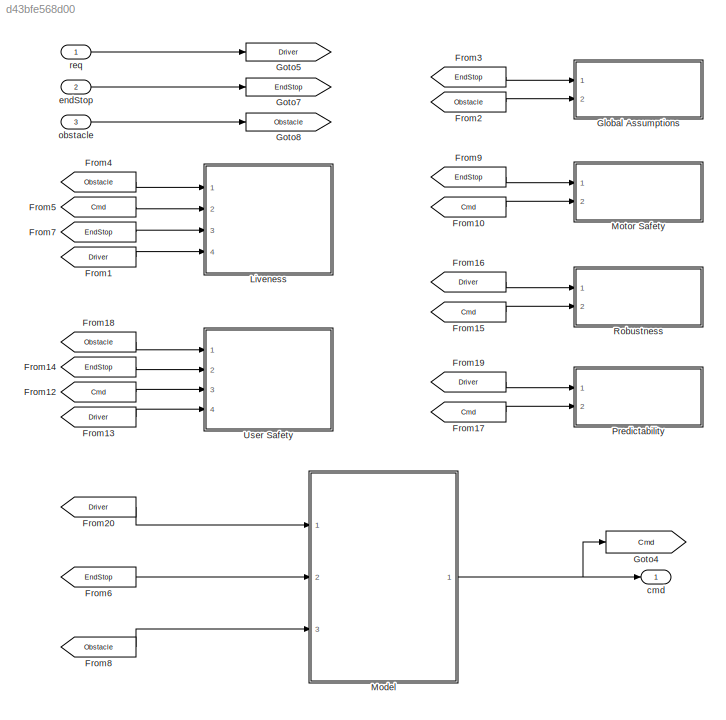
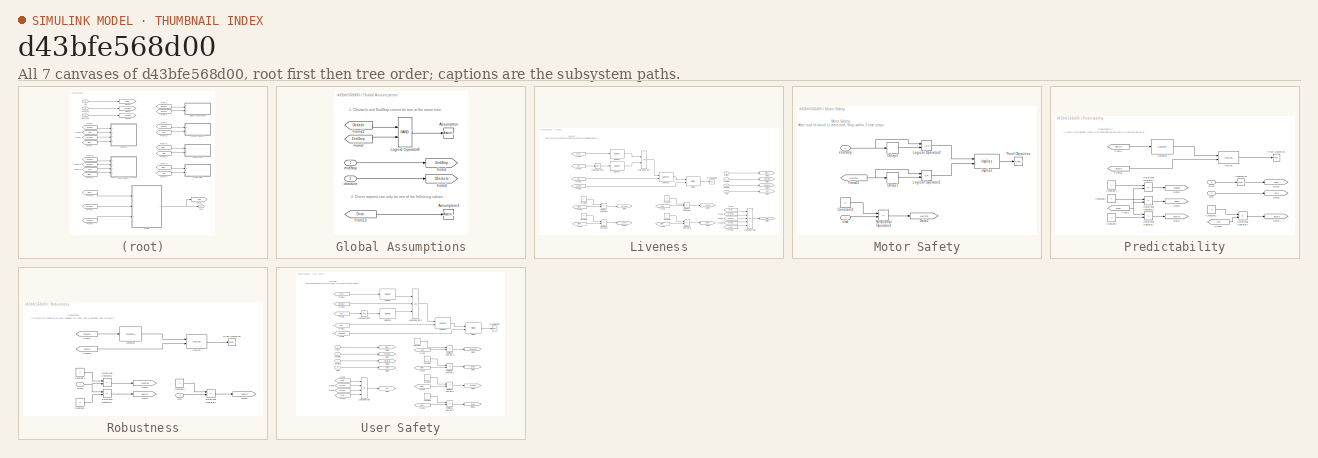
[diagram: thumbnail index - all 7 canvases of the model, root first then tree order]
MODEL slx_d43bfe568d00
KIND model
BLOCK [From] From1
  GotoTag = Driver
BLOCK [From] From10
  GotoTag = Cmd
BLOCK [From] From12
  GotoTag = Cmd
BLOCK [From] From13
  GotoTag = Driver
BLOCK [From] From14
  GotoTag = EndStop
BLOCK [From] From15
  GotoTag = Cmd
BLOCK [From] From16
  GotoTag = Driver
BLOCK [From] From17
  GotoTag = Cmd
BLOCK [From] From18
  GotoTag = Obstacle
BLOCK [From] From19
  GotoTag = Driver
BLOCK [From] From2
  GotoTag = Obstacle
BLOCK [From] From20
  GotoTag = Driver
BLOCK [From] From3
  GotoTag = EndStop
BLOCK [From] From4
  GotoTag = Obstacle
BLOCK [From] From5
  GotoTag = Cmd
BLOCK [From] From6
  GotoTag = EndStop
BLOCK [From] From7
  GotoTag = EndStop
BLOCK [From] From8
  GotoTag = Obstacle
BLOCK [From] From9
  GotoTag = EndStop
BLOCK [SubSystem] Global Assumptions
  CopyFcn = sldvsubsys('copy');
  DisableCoverage = on
  FunctionWithSeparateData = off
  LoadFcn = sldvsubsys('check')
  MaskHideContents = off
  MinAlgLoopOccurrences = off
  Opaque = off
  OpenFcn = open_system(gcb,'force');
  Ports = [2]
  PreSaveFcn = set_param(gcb,'SimViewingDevice','on');\nsldvsubsys('check');
  PropExecContextOutsideSubsystem = off
  RTWSystemCode = Auto
  RequestExecContextInheritance = off
  SimViewingDevice = on
  Tag = VerificationSubsystem
  TreatAsAtomicUnit = on
BLOCK [Reference] Global Assumptions/Assumption  REF=sldvlib/Objectives and Constraints/Assumption
  AttributesFormatString = %<intervals>
  Ports = [1]
  SourceBlock = sldvlib/Objectives and Constraints/Assumption
  SourceType = Design Verifier Assumption
  customAVTBlockType = Assumption
  dispValues = on
  enabled = on
  initial = off
  intervals = true
  outEnabled = off
BLOCK [Reference] Global Assumptions/Assumption1  REF=sldvlib/Objectives and Constraints/Assumption
  AttributesFormatString = %<intervals>
  Ports = [1]
  SourceBlock = sldvlib/Objectives and Constraints/Assumption
  SourceType = Design Verifier Assumption
  customAVTBlockType = Assumption
  dispValues = on
  enabled = on
  initial = off
  intervals = {0,1,2,3,4}
  outEnabled = off
BLOCK [From] Global Assumptions/From13
  GotoTag = Driver
BLOCK [From] Global Assumptions/From2
  GotoTag = EndStop
  TagVisibility = global
BLOCK [From] Global Assumptions/From22
  GotoTag = Obstacle
  TagVisibility = global
BLOCK [Goto] Global Assumptions/Goto1
  GotoTag = EndStop
  TagVisibility = global
BLOCK [Goto] Global Assumptions/Goto4
  GotoTag = Obstacle
  TagVisibility = global
BLOCK [Logic] Global Assumptions/Logical Operator8
  AllPortsSameDT = off
  Operator = NAND
  OutDataTypeStr = boolean
  Ports = [2, 1]
BLOCK [Inport] Global Assumptions/endStop
  IconDisplay = Port number
BLOCK [Inport] Global Assumptions/obstacle
  IconDisplay = Port number
  Port = 2
BLOCK [Goto] Goto4
  GotoTag = Cmd
BLOCK [Goto] Goto5
  GotoTag = Driver
BLOCK [Goto] Goto7
  GotoTag = EndStop
BLOCK [Goto] Goto8
  GotoTag = Obstacle
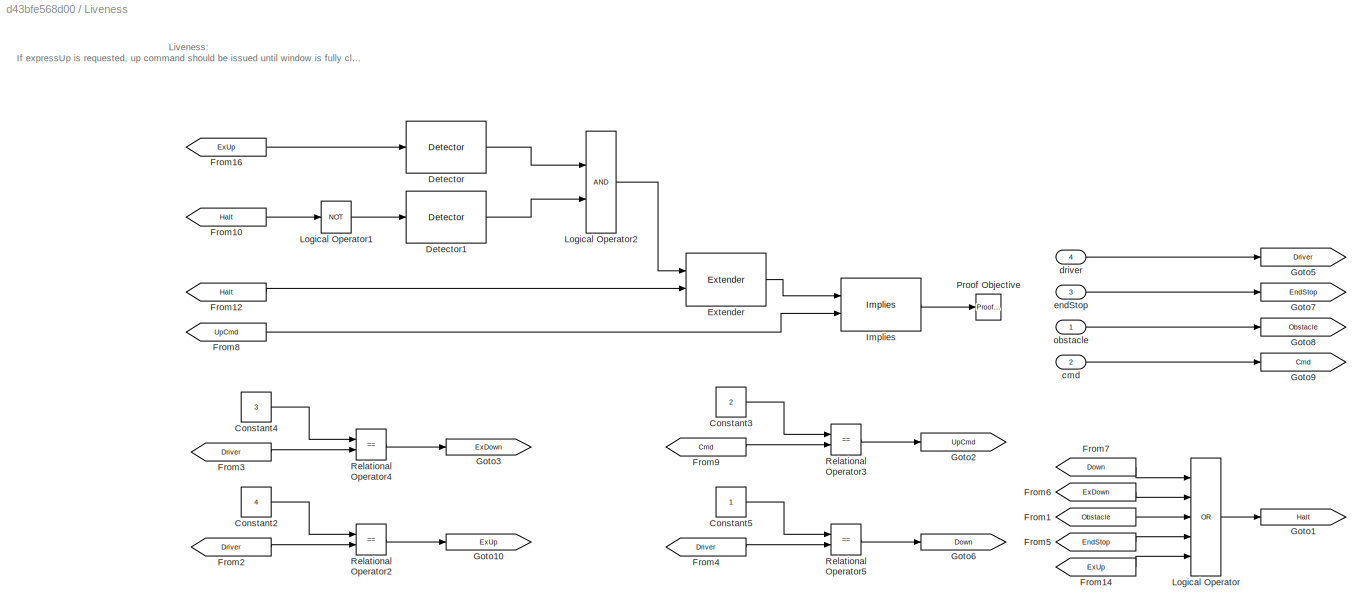
BLOCK [SubSystem] Liveness
  CopyFcn = sldvsubsys('copy');
  DisableCoverage = on
  FunctionWithSeparateData = off
  LoadFcn = sldvsubsys('check')
  MaskHideContents = off
  MinAlgLoopOccurrences = off
  Opaque = off
  OpenFcn = open_system(gcb,'force');
  Ports = [4]
  PreSaveFcn = set_param(gcb,'SimViewingDevice','on');\nsldvsubsys('check');
  PropExecContextOutsideSubsystem = off
  RTWSystemCode = Auto
  RequestExecContextInheritance = off
  SimViewingDevice = on
  Tag = VerificationSubsystem
  TreatAsAtomicUnit = on
BLOCK [Constant] Liveness/Constant2
  SampleTime = Inf
  Value = 4
BLOCK [Constant] Liveness/Constant3
  SampleTime = Inf
  Value = 2
BLOCK [Constant] Liveness/Constant4
  SampleTime = Inf
  Value = 3
BLOCK [Constant] Liveness/Constant5
  SampleTime = Inf
BLOCK [Reference] Liveness/Detector  REF=sldvlib/Temporal Operators/Detector
  Ports = [1, 1]
  SourceBlock = sldvlib/Temporal Operators/Detector
  SourceType = Detector
  delay = 0
  in_hold = 3
  out_hold = 2
  reset = off
  typ = Delayed Fixed Duration
BLOCK [Reference] Liveness/Detector1  REF=sldvlib/Temporal Operators/Detector
  Ports = [1, 1]
  SourceBlock = sldvlib/Temporal Operators/Detector
  SourceType = Detector
  delay = 0
  in_hold = 4
  out_hold = 1
  reset = off
  typ = Delayed Fixed Duration
BLOCK [Reference] Liveness/Extender  REF=sldvlib/Temporal Operators/Extender
  Ports = [2, 1]
  SourceBlock = sldvlib/Temporal Operators/Extender
  SourceType = Extender
  ext_type = Infinite
  out_hold = 3
  reset = on
BLOCK [From] Liveness/From1
  GotoTag = Obstacle
BLOCK [From] Liveness/From10
  GotoTag = Halt
BLOCK [From] Liveness/From12
  GotoTag = Halt
BLOCK [From] Liveness/From14
  GotoTag = ExUp
BLOCK [From] Liveness/From16
  GotoTag = ExUp
BLOCK [From] Liveness/From2
  GotoTag = Driver
BLOCK [From] Liveness/From3
  GotoTag = Driver
BLOCK [From] Liveness/From4
  GotoTag = Driver
BLOCK [From] Liveness/From5
  GotoTag = EndStop
BLOCK [From] Liveness/From6
  GotoTag = ExDown
BLOCK [From] Liveness/From7
  GotoTag = Down
BLOCK [From] Liveness/From8
  GotoTag = UpCmd
BLOCK [From] Liveness/From9
  GotoTag = Cmd
BLOCK [Goto] Liveness/Goto1
  GotoTag = Halt
BLOCK [Goto] Liveness/Goto10
  GotoTag = ExUp
BLOCK [Goto] Liveness/Goto2
  GotoTag = UpCmd
BLOCK [Goto] Liveness/Goto3
  GotoTag = ExDown
BLOCK [Goto] Liveness/Goto5
  GotoTag = Driver
BLOCK [Goto] Liveness/Goto6
  GotoTag = Down
BLOCK [Goto] Liveness/Goto7
  GotoTag = EndStop
BLOCK [Goto] Liveness/Goto8
  GotoTag = Obstacle
BLOCK [Goto] Liveness/Goto9
  GotoTag = Cmd
BLOCK [Reference] Liveness/Implies  REF=sldvlib/Verification Utilities/Implies
  Ports = [2, 1]
  SourceBlock = sldvlib/Verification Utilities/Implies
  SourceType = Design Verifier Implies
BLOCK [Logic] Liveness/Logical Operator
  AllPortsSameDT = off
  Inputs = 5
  Operator = OR
  OutDataTypeStr = boolean
  Ports = [5, 1]
BLOCK [Logic] Liveness/Logical Operator1
  AllPortsSameDT = off
  Operator = NOT
  OutDataTypeStr = boolean
  Ports = [1, 1]
BLOCK [Logic] Liveness/Logical Operator2
  AllPortsSameDT = off
  OutDataTypeStr = boolean
  Ports = [2, 1]
BLOCK [Reference] Liveness/Proof Objective  REF=sldvlib/Objectives and Constraints/Proof Objective
  AttributesFormatString = %<intervals>
  Ports = [1]
  SourceBlock = sldvlib/Objectives and Constraints/Proof Objective
  SourceType = Design Verifier Proof Objective
  customAVTBlockType = Proof Objective
  dispValues = on
  enableStopSim = off
  enabled = on
  intervals = true
  outEnabled = off
BLOCK [RelationalOperator] Liveness/Relational Operator2
  InputSameDT = off
  Operator = ==
  OutDataTypeStr = boolean
  Ports = [2, 1]
BLOCK [RelationalOperator] Liveness/Relational Operator3
  InputSameDT = off
  Operator = ==
  OutDataTypeStr = boolean
  Ports = [2, 1]
BLOCK [RelationalOperator] Liveness/Relational Operator4
  InputSameDT = off
  Operator = ==
  OutDataTypeStr = boolean
  Ports = [2, 1]
BLOCK [RelationalOperator] Liveness/Relational Operator5
  InputSameDT = off
  Operator = ==
  OutDataTypeStr = boolean
  Ports = [2, 1]
BLOCK [Inport] Liveness/cmd
  IconDisplay = Port number
  Port = 2
BLOCK [Inport] Liveness/driver
  IconDisplay = Port number
  OutDataTypeStr = double
  Port = 4
BLOCK [Inport] Liveness/endStop
  IconDisplay = Port number
  OutDataTypeStr = boolean
  Port = 3
BLOCK [Inport] Liveness/obstacle
  IconDisplay = Port number
  OutDataTypeStr = boolean
BLOCK [ModelReference] Model
  CopyOfModelName = power_window_controller
  DefaultDataLogging = on
  ModelNameDialog = power_window_controller
  ModelReferenceVersion = 1.36
  Ports = [3, 1]
BLOCK [SubSystem] Motor Safety
  CopyFcn = sldvsubsys('copy');
  DisableCoverage = on
  FunctionWithSeparateData = off
  LoadFcn = sldvsubsys('check')
  MaskHideContents = off
  MinAlgLoopOccurrences = off
  Opaque = off
  OpenFcn = open_system(gcb,'force');
  Ports = [2]
  PreSaveFcn = set_param(gcb,'SimViewingDevice','on');\nsldvsubsys('check');
  PropExecContextOutsideSubsystem = off
  RTWSystemCode = Auto
  RequestExecContextInheritance = off
  SimViewingDevice = on
  Tag = VerificationSubsystem
  TreatAsAtomicUnit = on
BLOCK [Constant] Motor Safety/Constant3
  SampleTime = Inf
  Value = 0
BLOCK [Delay] Motor Safety/Delay1
  DelayLength = 1
  InitialCondition = 0
  InputPortMap = u0
  Ports = [1, 1]
BLOCK [Delay] Motor Safety/Delay2
  DelayLength = 1
  InitialCondition = 0
  InputPortMap = u0
  Ports = [1, 1]
BLOCK [From] Motor Safety/From22
  GotoTag = NoCmd
BLOCK [Goto] Motor Safety/Goto2
  GotoTag = NoCmd
BLOCK [Reference] Motor Safety/Implies  REF=sldvlib/Verification Utilities/Implies
  Ports = [2, 1]
  SourceBlock = sldvlib/Verification Utilities/Implies
  SourceType = Design Verifier Implies
BLOCK [Logic] Motor Safety/Logical Operator1
  AllPortsSameDT = off
  Operator = OR
  OutDataTypeStr = boolean
  Ports = [2, 1]
BLOCK [Logic] Motor Safety/Logical Operator2
  AllPortsSameDT = off
  OutDataTypeStr = boolean
  Ports = [2, 1]
BLOCK [Reference] Motor Safety/Proof Objective  REF=sldvlib/Objectives and Constraints/Proof Objective
  AttributesFormatString = %<intervals>
  Ports = [1]
  SourceBlock = sldvlib/Objectives and Constraints/Proof Objective
  SourceType = Design Verifier Proof Objective
  customAVTBlockType = Proof Objective
  dispValues = on
  enableStopSim = off
  enabled = off
  intervals = true
  outEnabled = off
BLOCK [RelationalOperator] Motor Safety/Relational Operator3
  InputSameDT = off
  Operator = ==
  OutDataTypeStr = boolean
  Ports = [2, 1]
BLOCK [Inport] Motor Safety/cmd
  IconDisplay = Port number
  Port = 2
BLOCK [Inport] Motor Safety/endStop
  IconDisplay = Port number
BLOCK [SubSystem] Predictability
  CopyFcn = sldvsubsys('copy');
  DisableCoverage = on
  FunctionWithSeparateData = off
  LoadFcn = sldvsubsys('check')
  MaskHideContents = off
  MinAlgLoopOccurrences = off
  Opaque = off
  OpenFcn = open_system(gcb,'force');
  Ports = [2]
  PreSaveFcn = set_param(gcb,'SimViewingDevice','on');\nsldvsubsys('check');
  PropExecContextOutsideSubsystem = off
  RTWSystemCode = Auto
  RequestExecContextInheritance = off
  SimViewingDevice = on
  Tag = VerificationSubsystem
  TreatAsAtomicUnit = on
BLOCK [Reference] Predictability/Assumption  REF=sldvlib/Objectives and Constraints/Assumption
  AttributesFormatString = %<intervals>
  Ports = [1, 1]
  SourceBlock = sldvlib/Objectives and Constraints/Assumption
  SourceType = Design Verifier Assumption
  customAVTBlockType = Assumption
  dispValues = on
  enabled = on
  initial = off
  intervals = {0,1,2}
  outEnabled = on
BLOCK [Constant] Predictability/Constant1
  SampleTime = Inf
  Value = 0
BLOCK [Constant] Predictability/Constant2
  SampleTime = Inf
  Value = 0
BLOCK [Constant] Predictability/Constant3
  SampleTime = Inf
  Value = 4
BLOCK [Constant] Predictability/Constant4
  SampleTime = Inf
  Value = 3
BLOCK [Reference] Predictability/Detector  REF=sldvlib/Temporal Operators/Detector
  Ports = [1, 1]
  SourceBlock = sldvlib/Temporal Operators/Detector
  SourceType = Detector
  delay = 0
  in_hold = 3
  out_hold = 5
  reset = off
  typ = Synchronized
BLOCK [From] Predictability/From1
  GotoTag = Neutral
BLOCK [From] Predictability/From2
  GotoTag = Driver
BLOCK [From] Predictability/From22
  GotoTag = NoCmd
BLOCK [From] Predictability/From3
  GotoTag = Cmd
BLOCK [Goto] Predictability/Goto1
  GotoTag = Neutral
BLOCK [Goto] Predictability/Goto2
  GotoTag = ExUp
BLOCK [Goto] Predictability/Goto3
  GotoTag = NoCmd
BLOCK [Goto] Predictability/Goto4
  GotoTag = ExDown
BLOCK [Goto] Predictability/Goto5
  GotoTag = Driver
BLOCK [Goto] Predictability/Goto9
  GotoTag = Cmd
BLOCK [Reference] Predictability/Implies  REF=sldvlib/Verification Utilities/Implies
  Ports = [2, 1]
  SourceBlock = sldvlib/Verification Utilities/Implies
  SourceType = Design Verifier Implies
BLOCK [Reference] Predictability/Proof Objective  REF=sldvlib/Objectives and Constraints/Proof Objective
  AttributesFormatString = %<intervals>
  Ports = [1]
  SourceBlock = sldvlib/Objectives and Constraints/Proof Objective
  SourceType = Design Verifier Proof Objective
  customAVTBlockType = Proof Objective
  dispValues = on
  enableStopSim = off
  enabled = on
  intervals = true
  outEnabled = off
BLOCK [RelationalOperator] Predictability/Relational Operator1
  InputSameDT = off
  Operator = ==
  OutDataTypeStr = boolean
  Ports = [2, 1]
BLOCK [RelationalOperator] Predictability/Relational Operator2
  InputSameDT = off
  Operator = ==
  OutDataTypeStr = boolean
  Ports = [2, 1]
BLOCK [RelationalOperator] Predictability/Relational Operator3
  InputSameDT = off
  Operator = ==
  OutDataTypeStr = boolean
  Ports = [2, 1]
BLOCK [RelationalOperator] Predictability/Relational Operator4
  InputSameDT = off
  Operator = ==
  OutDataTypeStr = boolean
  Ports = [2, 1]
BLOCK [Inport] Predictability/cmd
  IconDisplay = Port number
  Port = 2
BLOCK [Inport] Predictability/driver
  IconDisplay = Port number
  OutDataTypeStr = double
BLOCK [SubSystem] Robustness
  CopyFcn = sldvsubsys('copy');
  DisableCoverage = on
  FunctionWithSeparateData = off
  LoadFcn = sldvsubsys('check')
  MaskHideContents = off
  MinAlgLoopOccurrences = off
  Opaque = off
  OpenFcn = open_system(gcb,'force');
  Ports = [2]
  PreSaveFcn = set_param(gcb,'SimViewingDevice','on');\nsldvsubsys('check');
  PropExecContextOutsideSubsystem = off
  RTWSystemCode = Auto
  RequestExecContextInheritance = off
  SimViewingDevice = on
  Tag = VerificationSubsystem
  TreatAsAtomicUnit = on
BLOCK [Constant] Robustness/Constant1
  SampleTime = Inf
  Value = 0
BLOCK [Constant] Robustness/Constant2
  SampleTime = Inf
  Value = 0
BLOCK [Constant] Robustness/Constant3
  SampleTime = Inf
  Value = 2
BLOCK [Reference] Robustness/Detector  REF=sldvlib/Temporal Operators/Detector
  Ports = [1, 1]
  SourceBlock = sldvlib/Temporal Operators/Detector
  SourceType = Detector
  delay = 0
  in_hold = 100
  out_hold = 5
  reset = off
  typ = Delayed Fixed Duration
BLOCK [From] Robustness/From1
  GotoTag = DriverUp
BLOCK [From] Robustness/From22
  GotoTag = NoCmd
BLOCK [Goto] Robustness/Goto1
  GotoTag = Neutral
BLOCK [Goto] Robustness/Goto2
  GotoTag = DriverUp
BLOCK [Goto] Robustness/Goto3
  GotoTag = NoCmd
BLOCK [Reference] Robustness/Implies  REF=sldvlib/Verification Utilities/Implies
  Ports = [2, 1]
  SourceBlock = sldvlib/Verification Utilities/Implies
  SourceType = Design Verifier Implies
BLOCK [Reference] Robustness/Proof Objective  REF=sldvlib/Objectives and Constraints/Proof Objective
  AttributesFormatString = %<intervals>
  Ports = [1]
  SourceBlock = sldvlib/Objectives and Constraints/Proof Objective
  SourceType = Design Verifier Proof Objective
  customAVTBlockType = Proof Objective
  dispValues = on
  enableStopSim = off
  enabled = off
  intervals = true
  outEnabled = off
BLOCK [RelationalOperator] Robustness/Relational Operator1
  InputSameDT = off
  Operator = ==
  OutDataTypeStr = boolean
  Ports = [2, 1]
BLOCK [RelationalOperator] Robustness/Relational Operator2
  InputSameDT = off
  Operator = ==
  OutDataTypeStr = boolean
  Ports = [2, 1]
BLOCK [RelationalOperator] Robustness/Relational Operator3
  InputSameDT = off
  Operator = ==
  OutDataTypeStr = boolean
  Ports = [2, 1]
BLOCK [Inport] Robustness/cmd
  IconDisplay = Port number
  Port = 2
BLOCK [Inport] Robustness/driver
  IconDisplay = Port number
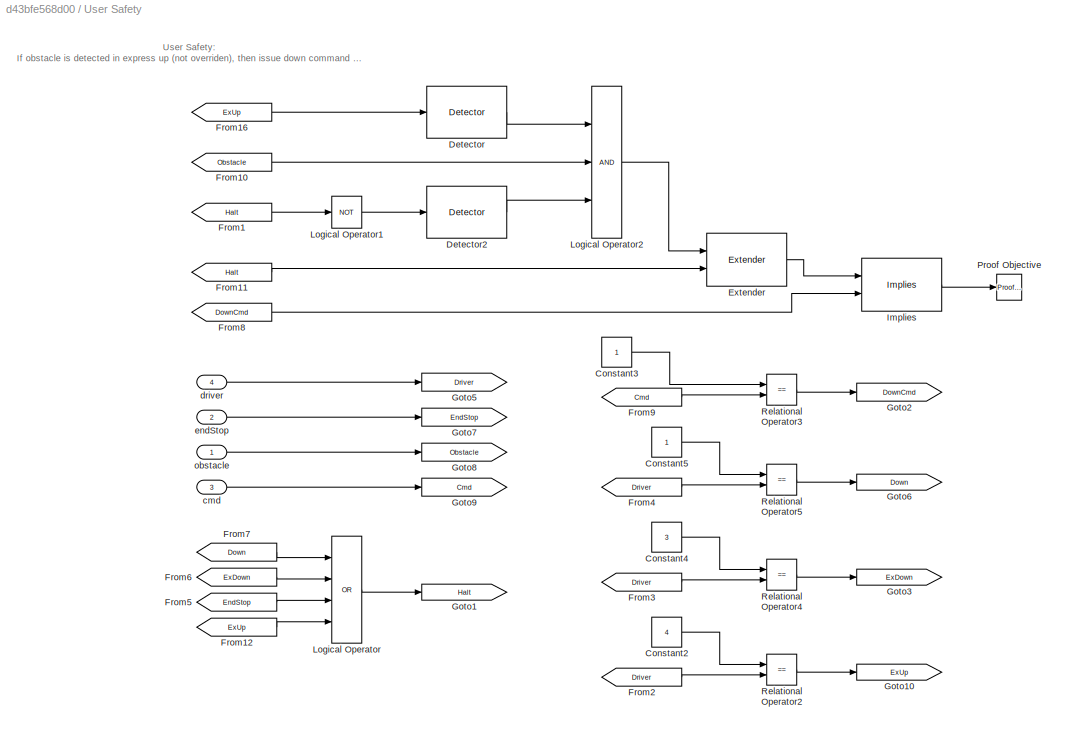
BLOCK [SubSystem] User Safety
  CopyFcn = sldvsubsys('copy');
  DisableCoverage = on
  FunctionWithSeparateData = off
  LoadFcn = sldvsubsys('check')
  MaskHideContents = off
  MinAlgLoopOccurrences = off
  Opaque = off
  OpenFcn = open_system(gcb,'force');
  Ports = [4]
  PreSaveFcn = set_param(gcb,'SimViewingDevice','on');\nsldvsubsys('check');
  PropExecContextOutsideSubsystem = off
  RTWSystemCode = Auto
  RequestExecContextInheritance = off
  SimViewingDevice = on
  Tag = VerificationSubsystem
  TreatAsAtomicUnit = on
BLOCK [Constant] User Safety/Constant2
  SampleTime = Inf
  Value = 4
BLOCK [Constant] User Safety/Constant3
  SampleTime = Inf
BLOCK [Constant] User Safety/Constant4
  SampleTime = Inf
  Value = 3
BLOCK [Constant] User Safety/Constant5
  SampleTime = Inf
BLOCK [Reference] User Safety/Detector  REF=sldvlib/Temporal Operators/Detector
  Ports = [1, 1]
  SourceBlock = sldvlib/Temporal Operators/Detector
  SourceType = Detector
  delay = 0
  in_hold = 3
  out_hold = 2
  reset = off
  typ = Delayed Fixed Duration
BLOCK [Reference] User Safety/Detector2  REF=sldvlib/Temporal Operators/Detector
  Ports = [1, 1]
  SourceBlock = sldvlib/Temporal Operators/Detector
  SourceType = Detector
  delay = 0
  in_hold = 4
  out_hold = 1
  reset = off
  typ = Delayed Fixed Duration
BLOCK [Reference] User Safety/Extender  REF=sldvlib/Temporal Operators/Extender
  Ports = [2, 1]
  SourceBlock = sldvlib/Temporal Operators/Extender
  SourceType = Extender
  ext_type = Infinite
  out_hold = 3
  reset = on
BLOCK [From] User Safety/From1
  GotoTag = Halt
BLOCK [From] User Safety/From10
  GotoTag = Obstacle
BLOCK [From] User Safety/From11
  GotoTag = Halt
BLOCK [From] User Safety/From12
  GotoTag = ExUp
BLOCK [From] User Safety/From16
  GotoTag = ExUp
BLOCK [From] User Safety/From2
  GotoTag = Driver
BLOCK [From] User Safety/From3
  GotoTag = Driver
BLOCK [From] User Safety/From4
  GotoTag = Driver
BLOCK [From] User Safety/From5
  GotoTag = EndStop
BLOCK [From] User Safety/From6
  GotoTag = ExDown
BLOCK [From] User Safety/From7
  GotoTag = Down
BLOCK [From] User Safety/From8
  GotoTag = DownCmd
BLOCK [From] User Safety/From9
  GotoTag = Cmd
BLOCK [Goto] User Safety/Goto1
  GotoTag = Halt
BLOCK [Goto] User Safety/Goto10
  GotoTag = ExUp
BLOCK [Goto] User Safety/Goto2
  GotoTag = DownCmd
BLOCK [Goto] User Safety/Goto3
  GotoTag = ExDown
BLOCK [Goto] User Safety/Goto5
  GotoTag = Driver
BLOCK [Goto] User Safety/Goto6
  GotoTag = Down
BLOCK [Goto] User Safety/Goto7
  GotoTag = EndStop
BLOCK [Goto] User Safety/Goto8
  GotoTag = Obstacle
BLOCK [Goto] User Safety/Goto9
  GotoTag = Cmd
BLOCK [Reference] User Safety/Implies  REF=sldvlib/Verification Utilities/Implies
  Ports = [2, 1]
  SourceBlock = sldvlib/Verification Utilities/Implies
  SourceType = Design Verifier Implies
BLOCK [Logic] User Safety/Logical Operator
  AllPortsSameDT = off
  Inputs = 4
  Operator = OR
  OutDataTypeStr = boolean
  Ports = [4, 1]
BLOCK [Logic] User Safety/Logical Operator1
  AllPortsSameDT = off
  Operator = NOT
  OutDataTypeStr = boolean
  Ports = [1, 1]
BLOCK [Logic] User Safety/Logical Operator2
  AllPortsSameDT = off
  Inputs = 3
  OutDataTypeStr = boolean
  Ports = [3, 1]
BLOCK [Reference] User Safety/Proof Objective  REF=sldvlib/Objectives and Constraints/Proof Objective
  AttributesFormatString = %<intervals>
  Ports = [1]
  SourceBlock = sldvlib/Objectives and Constraints/Proof Objective
  SourceType = Design Verifier Proof Objective
  customAVTBlockType = Proof Objective
  dispValues = on
  enableStopSim = off
  enabled = on
  intervals = true
  outEnabled = off
BLOCK [RelationalOperator] User Safety/Relational Operator2
  InputSameDT = off
  Operator = ==
  OutDataTypeStr = boolean
  Ports = [2, 1]
BLOCK [RelationalOperator] User Safety/Relational Operator3
  InputSameDT = off
  Operator = ==
  OutDataTypeStr = boolean
  Ports = [2, 1]
BLOCK [RelationalOperator] User Safety/Relational Operator4
  InputSameDT = off
  Operator = ==
  OutDataTypeStr = boolean
  Ports = [2, 1]
BLOCK [RelationalOperator] User Safety/Relational Operator5
  InputSameDT = off
  Operator = ==
  OutDataTypeStr = boolean
  Ports = [2, 1]
BLOCK [Inport] User Safety/cmd
  IconDisplay = Port number
  Port = 3
BLOCK [Inport] User Safety/driver
  IconDisplay = Port number
  OutDataTypeStr = double
  Port = 4
BLOCK [Inport] User Safety/endStop
  IconDisplay = Port number
  OutDataTypeStr = boolean
  Port = 2
BLOCK [Inport] User Safety/obstacle
  IconDisplay = Port number
  OutDataTypeStr = boolean
BLOCK [Outport] cmd
  IconDisplay = Port number
BLOCK [Inport] endStop
  IconDisplay = Port number
  OutDataTypeStr = boolean
  Port = 2
BLOCK [Inport] obstacle
  IconDisplay = Port number
  OutDataTypeStr = boolean
  Port = 3
BLOCK [Inport] req
  IconDisplay = Port number
  OutDataTypeStr = double
ANNOTATION Global Assumptions: 1. Obstacle and EndStop cannot be true at the same time
ANNOTATION Global Assumptions: 2. Driver request can only be one of the following values
ANNOTATION Liveness: Liveness: If expressUp is requested, up command should be issued until window is fully closed (unless there is an obstacle and user is not overriding)
ANNOTATION Motor Safety: Motor Safety: After end of travel is detected, Stop within 2 time steps
ANNOTATION Predictability: Predictability: If there is no request, there is no command unless there is a delayed action e.g. express
ANNOTATION Robustness: Robustness: If the switch issues up or down request for more than 10 seconds (switch fault), stop the motor until the switch request is neutral again
ANNOTATION User Safety: User Safety: If obstacle is detected in express up (not overriden), then issue down command to Motor until endStop is reached
LINE From10:1 -> Motor Safety:2
LINE From12:1 -> User Safety:3
LINE From13:1 -> User Safety:4
LINE From14:1 -> User Safety:2
LINE From15:1 -> Robustness:2
LINE From16:1 -> Robustness:1
LINE From17:1 -> Predictability:2
LINE From18:1 -> User Safety:1
LINE From19:1 -> Predictability:1
LINE From1:1 -> Liveness:4
LINE From20:1 -> Model:1
LINE From2:1 -> Global Assumptions:2
LINE From3:1 -> Global Assumptions:1
LINE From4:1 -> Liveness:1
LINE From5:1 -> Liveness:2
LINE From6:1 -> Model:2
LINE From7:1 -> Liveness:3
LINE From8:1 -> Model:3
LINE From9:1 -> Motor Safety:1
NET Model:1 -> Goto4:1, cmd:1
LINE endStop:1 -> Goto7:1
LINE obstacle:1 -> Goto8:1
LINE req:1 -> Goto5:1
note: NET lines group one-source signal fan-out (src -> all destinations, sorted); 1:1 wires keep LINE
